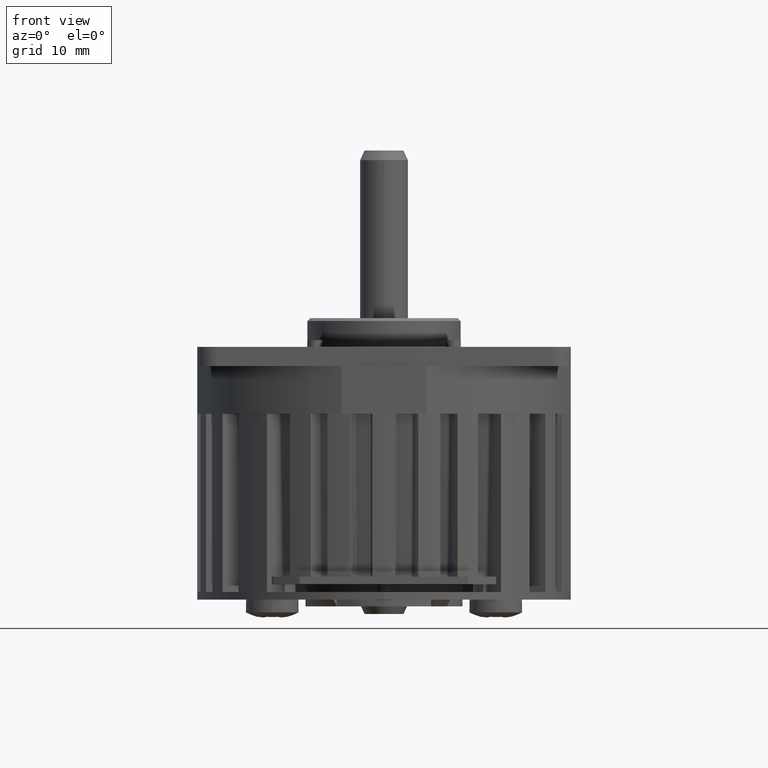
[diagram: clean part render]
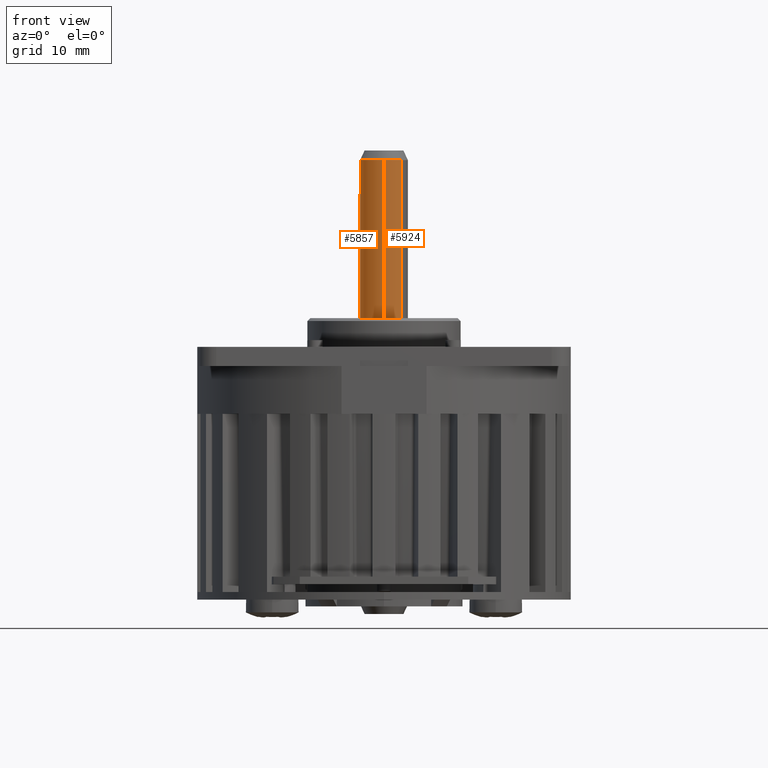
[diagram: same view with one multi-face feature highlighted, each face labeled with its STEP entity id]
A machine part, front view. The highlighted faces form ONE feature: a constant-radius fillet chain: 2 tangent blend faces with common blend radius 2.5 mm. The faces share edges in the B-rep.
Their STEP definitions:
[1] entity #5857 (Cylinder):
#5111=CARTESIAN_POINT('',(1.626980885086E-14,3.190264892539E-14,2.32E1));
#5112=DIRECTION('',(0.E0,0.E0,1.E0));
#5113=DIRECTION('',(1.E0,0.E0,0.E0));
#5114=AXIS2_PLACEMENT_3D('',#5111,#5112,#5113);
#5130=CARTESIAN_POINT('',(1.626980885086E-14,3.190264892539E-14,2.32E1));
#5131=DIRECTION('',(0.E0,0.E0,1.E0));
#5132=DIRECTION('',(-7.071067811865E-1,-7.071067811866E-1,0.E0));
#5133=AXIS2_PLACEMENT_3D('',#5130,#5131,#5132);
#5140=DIRECTION('',(0.E0,0.E0,1.E0));
#5141=VECTOR('',#5140,8.E0);
#5142=CARTESIAN_POINT('',(1.820199164927E0,1.713731309161E0,-8.E-1));
#5143=LINE('',#5142,#5141);
#5144=DIRECTION('',(0.E0,0.E0,-1.E0));
#5145=VECTOR('',#5144,8.E0);
#5146=CARTESIAN_POINT('',(-1.713731309161E0,-1.820199164927E0,7.2E0));
#5147=LINE('',#5146,#5145);
#5148=DIRECTION('',(0.E0,0.E0,-1.E0));
#5149=VECTOR('',#5148,8.E0);
#5150=CARTESIAN_POINT('',(1.820199164927E0,-1.713731309161E0,7.2E0));
#5151=LINE('',#5150,#5149);
#5152=DIRECTION('',(0.E0,0.E0,1.E0));
#5153=VECTOR('',#5152,8.E0);
#5154=CARTESIAN_POINT('',(1.713731309161E0,-1.820199164927E0,-8.E-1));
#5155=LINE('',#5154,#5153);
#5160=DIRECTION('',(0.E0,0.E0,-1.E0));
#5161=VECTOR('',#5160,2.24E1);
#5162=CARTESIAN_POINT('',(1.767766952966E0,1.767766952966E0,-8.E-1));
#5163=LINE('',#5162,#5161);
#5168=DIRECTION('',(0.E0,0.E0,-1.E0));
#5169=VECTOR('',#5168,1.6E1);
#5170=CARTESIAN_POINT('',(1.767766952966E0,1.767766952966E0,2.32E1));
#5171=LINE('',#5170,#5169);
#5180=DIRECTION('',(0.E0,0.E0,1.E0));
#5181=VECTOR('',#5180,1.6E1);
#5182=CARTESIAN_POINT('',(-1.767766952966E0,-1.767766952966E0,7.2E0));
#5183=LINE('',#5182,#5181);
#5188=DIRECTION('',(0.E0,0.E0,1.E0));
#5189=VECTOR('',#5188,2.24E1);
#5190=CARTESIAN_POINT('',(-1.767766952966E0,-1.767766952966E0,-2.32E1));
#5191=LINE('',#5190,#5189);
#5192=CARTESIAN_POINT('',(0.E0,0.E0,7.2E0));
#5193=DIRECTION('',(0.E0,0.E0,-1.E0));
#5194=DIRECTION('',(-7.E-1,-7.141428428543E-1,0.E0));
#5195=AXIS2_PLACEMENT_3D('',#5192,#5193,#5194);
#5218=CARTESIAN_POINT('',(0.E0,0.E0,-8.E-1));
#5219=DIRECTION('',(0.E0,0.E0,1.E0));
#5220=DIRECTION('',(-7.071067811865E-1,-7.071067811866E-1,0.E0));
#5221=AXIS2_PLACEMENT_3D('',#5218,#5219,#5220);
#5266=CARTESIAN_POINT('',(0.E0,0.E0,7.2E0));
#5267=DIRECTION('',(0.E0,0.E0,-1.E0));
#5268=DIRECTION('',(-6.854925236646E-1,-7.280796659707E-1,0.E0));
#5269=AXIS2_PLACEMENT_3D('',#5266,#5267,#5268);
#5283=CARTESIAN_POINT('',(0.E0,0.E0,-8.E-1));
#5284=DIRECTION('',(0.E0,0.E0,1.E0));
#5285=DIRECTION('',(-7.E-1,-7.141428428543E-1,0.E0));
#5286=AXIS2_PLACEMENT_3D('',#5283,#5284,#5285);
#5301=CARTESIAN_POINT('',(-1.624948006013E-14,-3.195008277043E-14,-2.32E1));
#5302=DIRECTION('',(0.E0,0.E0,-1.E0));
#5303=DIRECTION('',(1.E0,0.E0,0.E0));
#5304=AXIS2_PLACEMENT_3D('',#5301,#5302,#5303);
#5310=CARTESIAN_POINT('',(-1.624948006013E-14,-3.195008277043E-14,-2.32E1));
#5311=DIRECTION('',(0.E0,0.E0,-1.E0));
#5312=DIRECTION('',(7.071067811865E-1,7.071067811866E-1,0.E0));
#5313=AXIS2_PLACEMENT_3D('',#5310,#5311,#5312);
#5335=CARTESIAN_POINT('',(0.E0,0.E0,-8.E-1));
#5336=DIRECTION('',(0.E0,0.E0,1.E0));
#5337=DIRECTION('',(7.141428428543E-1,7.E-1,0.E0));
#5338=AXIS2_PLACEMENT_3D('',#5335,#5336,#5337);
#5377=CARTESIAN_POINT('',(0.E0,0.E0,7.2E0));
#5378=DIRECTION('',(0.E0,0.E0,-1.E0));
#5379=DIRECTION('',(7.071067811865E-1,7.071067811866E-1,0.E0));
#5380=AXIS2_PLACEMENT_3D('',#5377,#5378,#5379);
#5408=CARTESIAN_POINT('',(0.E0,0.E0,-8.E-1));
#5409=DIRECTION('',(0.E0,0.E0,1.E0));
#5410=DIRECTION('',(7.280796659707E-1,6.854925236646E-1,0.E0));
#5411=AXIS2_PLACEMENT_3D('',#5408,#5409,#5410);
#5417=CARTESIAN_POINT('',(0.E0,0.E0,7.2E0));
#5418=DIRECTION('',(0.E0,0.E0,-1.E0));
#5419=DIRECTION('',(7.141428428543E-1,7.E-1,0.E0));
#5420=AXIS2_PLACEMENT_3D('',#5417,#5418,#5419);
#5520=CARTESIAN_POINT('',(0.E0,0.E0,-8.E-1));
#5521=DIRECTION('',(0.E0,0.E0,1.E0));
#5522=DIRECTION('',(7.141428428543E-1,-7.E-1,0.E0));
#5523=AXIS2_PLACEMENT_3D('',#5520,#5521,#5522);
#5537=CARTESIAN_POINT('',(0.E0,0.E0,-8.E-1));
#5538=DIRECTION('',(0.E0,0.E0,1.E0));
#5539=DIRECTION('',(7.E-1,-7.141428428543E-1,0.E0));
#5540=AXIS2_PLACEMENT_3D('',#5537,#5538,#5539);
#5558=CARTESIAN_POINT('',(0.E0,0.E0,-8.E-1));
#5559=DIRECTION('',(0.E0,0.E0,1.E0));
#5560=DIRECTION('',(6.854925236646E-1,-7.280796659707E-1,0.E0));
#5561=AXIS2_PLACEMENT_3D('',#5558,#5559,#5560);
#5567=CARTESIAN_POINT('',(0.E0,0.E0,7.2E0));
#5568=DIRECTION('',(0.E0,0.E0,-1.E0));
#5569=DIRECTION('',(7.E-1,-7.141428428543E-1,0.E0));
#5570=AXIS2_PLACEMENT_3D('',#5567,#5568,#5569);
#5580=CARTESIAN_POINT('',(0.E0,0.E0,7.2E0));
#5581=DIRECTION('',(0.E0,0.E0,-1.E0));
#5582=DIRECTION('',(7.141428428543E-1,-7.E-1,0.E0));
#5583=AXIS2_PLACEMENT_3D('',#5580,#5581,#5582);
#5593=CARTESIAN_POINT('',(0.E0,0.E0,7.2E0));
#5594=DIRECTION('',(0.E0,0.E0,-1.E0));
#5595=DIRECTION('',(7.280796659707E-1,-6.854925236646E-1,0.E0));
#5596=AXIS2_PLACEMENT_3D('',#5593,#5594,#5595);
#5619=CARTESIAN_POINT('',(1.767766952966E0,1.767766952966E0,-2.32E1));
#5621=VERTEX_POINT('',#5619);
#5622=CARTESIAN_POINT('',(2.5E0,4.327209894323E-14,2.32E1));
#5623=CARTESIAN_POINT('',(1.767766952966E0,1.767766952966E0,2.32E1));
#5624=VERTEX_POINT('',#5622);
#5625=VERTEX_POINT('',#5623);
#5628=CARTESIAN_POINT('',(2.5E0,-2.095186674799E-14,-2.32E1));
#5630=VERTEX_POINT('',#5628);
#5632=CARTESIAN_POINT('',(-1.767766952966E0,-1.767766952966E0,-2.32E1));
#5633=VERTEX_POINT('',#5632);
#5637=CARTESIAN_POINT('',(-1.767766952966E0,-1.767766952966E0,-8.E-1));
#5639=VERTEX_POINT('',#5637);
#5642=CARTESIAN_POINT('',(-1.767766952966E0,-1.767766952966E0,2.32E1));
#5643=VERTEX_POINT('',#5642);
#5648=CARTESIAN_POINT('',(-1.767766952966E0,-1.767766952966E0,7.2E0));
#5649=VERTEX_POINT('',#5648);
#5650=CARTESIAN_POINT('',(1.713731309161E0,-1.820199164927E0,-8.E-1));
#5651=CARTESIAN_POINT('',(1.75E0,-1.785357107136E0,-8.E-1));
#5652=VERTEX_POINT('',#5650);
#5653=VERTEX_POINT('',#5651);
#5654=CARTESIAN_POINT('',(1.75E0,-1.785357107136E0,7.2E0));
#5655=CARTESIAN_POINT('',(1.713731309161E0,-1.820199164927E0,7.2E0));
#5656=VERTEX_POINT('',#5654);
#5657=VERTEX_POINT('',#5655);
#5658=CARTESIAN_POINT('',(1.785357107136E0,-1.75E0,7.2E0));
#5659=VERTEX_POINT('',#5658);
#5660=CARTESIAN_POINT('',(1.785357107136E0,-1.75E0,-8.E-1));
#5661=VERTEX_POINT('',#5660);
#5662=CARTESIAN_POINT('',(1.820199164927E0,-1.713731309161E0,-8.E-1));
#5663=VERTEX_POINT('',#5662);
#5664=CARTESIAN_POINT('',(1.820199164927E0,-1.713731309161E0,7.2E0));
#5665=VERTEX_POINT('',#5664);
#5666=CARTESIAN_POINT('',(-1.75E0,-1.785357107136E0,7.2E0));
#5667=VERTEX_POINT('',#5666);
#5668=CARTESIAN_POINT('',(-1.75E0,-1.785357107136E0,-8.E-1));
#5669=CARTESIAN_POINT('',(-1.713731309161E0,-1.820199164927E0,-8.E-1));
#5670=VERTEX_POINT('',#5668);
#5671=VERTEX_POINT('',#5669);
#5672=CARTESIAN_POINT('',(-1.713731309161E0,-1.820199164927E0,7.2E0));
#5673=VERTEX_POINT('',#5672);
#5674=CARTESIAN_POINT('',(1.767766952966E0,1.767766952966E0,-8.E-1));
#5675=VERTEX_POINT('',#5674);
#5676=CARTESIAN_POINT('',(1.820199164927E0,1.713731309161E0,-8.E-1));
#5677=CARTESIAN_POINT('',(1.820199164927E0,1.713731309161E0,7.2E0));
#5678=VERTEX_POINT('',#5676);
#5679=VERTEX_POINT('',#5677);
#5680=CARTESIAN_POINT('',(1.785357107136E0,1.75E0,-8.E-1));
#5681=VERTEX_POINT('',#5680);
#5682=CARTESIAN_POINT('',(1.785357107136E0,1.75E0,7.2E0));
#5683=VERTEX_POINT('',#5682);
#5684=CARTESIAN_POINT('',(1.767766952966E0,1.767766952966E0,7.2E0));
#5685=VERTEX_POINT('',#5684);
#5798=CARTESIAN_POINT('',(-3.489775742688E-14,-6.853512982824E-14,
-4.979483019480E1));
#5799=DIRECTION('',(0.E0,0.E0,-1.E0));
#5800=DIRECTION('',(-1.E0,0.E0,0.E0));
#5801=AXIS2_PLACEMENT_3D('',#5798,#5799,#5800);
#5802=CYLINDRICAL_SURFACE('',#5801,2.5E0);
#5803=ORIENTED_EDGE('',*,*,#5765,.T.);
#5805=ORIENTED_EDGE('',*,*,#5804,.T.);
#5807=ORIENTED_EDGE('',*,*,#5806,.T.);
#5809=ORIENTED_EDGE('',*,*,#5808,.T.);
#5811=ORIENTED_EDGE('',*,*,#5810,.F.);
#5813=ORIENTED_EDGE('',*,*,#5812,.T.);
#5815=ORIENTED_EDGE('',*,*,#5814,.T.);
#5817=ORIENTED_EDGE('',*,*,#5816,.T.);
#5819=ORIENTED_EDGE('',*,*,#5818,.T.);
#5821=ORIENTED_EDGE('',*,*,#5820,.T.);
#5823=ORIENTED_EDGE('',*,*,#5822,.T.);
#5825=ORIENTED_EDGE('',*,*,#5824,.T.);
#5827=ORIENTED_EDGE('',*,*,#5826,.T.);
#5829=ORIENTED_EDGE('',*,*,#5828,.F.);
#5831=ORIENTED_EDGE('',*,*,#5830,.T.);
#5833=ORIENTED_EDGE('',*,*,#5832,.T.);
#5835=ORIENTED_EDGE('',*,*,#5834,.T.);
#5836=ORIENTED_EDGE('',*,*,#5789,.T.);
#5837=EDGE_LOOP('',(#5803,#5805,#5807,#5809,#5811,#5813,#5815,#5817,#5819,#5821,
#5823,#5825,#5827,#5829,#5831,#5833,#5835,#5836));
#5838=FACE_OUTER_BOUND('',#5837,.F.);
#5840=ORIENTED_EDGE('',*,*,#5839,.T.);
#5842=ORIENTED_EDGE('',*,*,#5841,.F.);
#5844=ORIENTED_EDGE('',*,*,#5843,.T.);
#5846=ORIENTED_EDGE('',*,*,#5845,.T.);
#5848=ORIENTED_EDGE('',*,*,#5847,.T.);
#5850=ORIENTED_EDGE('',*,*,#5849,.F.);
#5852=ORIENTED_EDGE('',*,*,#5851,.T.);
#5854=ORIENTED_EDGE('',*,*,#5853,.T.);
#5855=EDGE_LOOP('',(#5840,#5842,#5844,#5846,#5848,#5850,#5852,#5854));
#5856=FACE_BOUND('',#5855,.F.);
#5857=ADVANCED_FACE('',(#5838,#5856),#5802,.T.);
#5115=CIRCLE('',#5114,2.5E0);
#5134=CIRCLE('',#5133,2.5E0);
#5196=CIRCLE('',#5195,2.5E0);
#5222=CIRCLE('',#5221,2.5E0);
#5270=CIRCLE('',#5269,2.5E0);
#5287=CIRCLE('',#5286,2.5E0);
#5305=CIRCLE('',#5304,2.5E0);
#5314=CIRCLE('',#5313,2.5E0);
#5339=CIRCLE('',#5338,2.5E0);
#5381=CIRCLE('',#5380,2.5E0);
#5412=CIRCLE('',#5411,2.5E0);
#5421=CIRCLE('',#5420,2.5E0);
#5524=CIRCLE('',#5523,2.5E0);
#5541=CIRCLE('',#5540,2.5E0);
#5562=CIRCLE('',#5561,2.5E0);
#5571=CIRCLE('',#5570,2.5E0);
#5584=CIRCLE('',#5583,2.5E0);
#5597=CIRCLE('',#5596,2.5E0);
#5765=EDGE_CURVE('',#5624,#5625,#5115,.T.);
#5789=EDGE_CURVE('',#5643,#5624,#5134,.T.);
#5804=EDGE_CURVE('',#5625,#5685,#5171,.T.);
#5806=EDGE_CURVE('',#5685,#5683,#5381,.T.);
#5808=EDGE_CURVE('',#5683,#5679,#5421,.T.);
#5810=EDGE_CURVE('',#5678,#5679,#5143,.T.);
#5812=EDGE_CURVE('',#5678,#5681,#5412,.T.);
#5814=EDGE_CURVE('',#5681,#5675,#5339,.T.);
#5816=EDGE_CURVE('',#5675,#5621,#5163,.T.);
#5818=EDGE_CURVE('',#5621,#5630,#5314,.T.);
#5820=EDGE_CURVE('',#5630,#5633,#5305,.T.);
#5822=EDGE_CURVE('',#5633,#5639,#5191,.T.);
#5824=EDGE_CURVE('',#5639,#5670,#5222,.T.);
#5826=EDGE_CURVE('',#5670,#5671,#5287,.T.);
#5828=EDGE_CURVE('',#5673,#5671,#5147,.T.);
#5830=EDGE_CURVE('',#5673,#5667,#5270,.T.);
#5832=EDGE_CURVE('',#5667,#5649,#5196,.T.);
#5834=EDGE_CURVE('',#5649,#5643,#5183,.T.);
#5839=EDGE_CURVE('',#5661,#5663,#5524,.T.);
#5841=EDGE_CURVE('',#5665,#5663,#5151,.T.);
#5843=EDGE_CURVE('',#5665,#5659,#5597,.T.);
#5845=EDGE_CURVE('',#5659,#5656,#5584,.T.);
#5847=EDGE_CURVE('',#5656,#5657,#5571,.T.);
#5849=EDGE_CURVE('',#5652,#5657,#5155,.T.);
#5851=EDGE_CURVE('',#5652,#5653,#5562,.T.);
#5853=EDGE_CURVE('',#5653,#5661,#5541,.T.);
[2] entity #5924 (Cylinder):
#5135=CARTESIAN_POINT('',(1.626980885086E-14,3.190264892539E-14,2.32E1));
#5136=DIRECTION('',(0.E0,0.E0,1.E0));
#5137=DIRECTION('',(-1.E0,0.E0,0.E0));
#5138=AXIS2_PLACEMENT_3D('',#5135,#5136,#5137);
#5156=DIRECTION('',(0.E0,0.E0,1.E0));
#5157=VECTOR('',#5156,4.64E1);
#5158=CARTESIAN_POINT('',(-2.5E0,-4.305525350250E-14,-2.32E1));
#5159=LINE('',#5158,#5157);
#5180=DIRECTION('',(0.E0,0.E0,1.E0));
#5181=VECTOR('',#5180,1.6E1);
#5182=CARTESIAN_POINT('',(-1.767766952966E0,-1.767766952966E0,7.2E0));
#5183=LINE('',#5182,#5181);
#5184=DIRECTION('',(0.E0,0.E0,1.E0));
#5185=VECTOR('',#5184,8.E0);
#5186=CARTESIAN_POINT('',(-1.820199164927E0,-1.713731309161E0,-8.E-1));
#5187=LINE('',#5186,#5185);
#5188=DIRECTION('',(0.E0,0.E0,1.E0));
#5189=VECTOR('',#5188,2.24E1);
#5190=CARTESIAN_POINT('',(-1.767766952966E0,-1.767766952966E0,-2.32E1));
#5191=LINE('',#5190,#5189);
#5205=CARTESIAN_POINT('',(0.E0,0.E0,7.2E0));
#5206=DIRECTION('',(0.E0,0.E0,-1.E0));
#5207=DIRECTION('',(-7.071067811865E-1,-7.071067811866E-1,0.E0));
#5208=AXIS2_PLACEMENT_3D('',#5205,#5206,#5207);
#5223=CARTESIAN_POINT('',(0.E0,0.E0,-8.E-1));
#5224=DIRECTION('',(0.E0,0.E0,1.E0));
#5225=DIRECTION('',(-7.141428428543E-1,-7.E-1,0.E0));
#5226=AXIS2_PLACEMENT_3D('',#5223,#5224,#5225);
#5244=CARTESIAN_POINT('',(0.E0,0.E0,-8.E-1));
#5245=DIRECTION('',(0.E0,0.E0,1.E0));
#5246=DIRECTION('',(-7.280796659707E-1,-6.854925236646E-1,0.E0));
#5247=AXIS2_PLACEMENT_3D('',#5244,#5245,#5246);
#5253=CARTESIAN_POINT('',(0.E0,0.E0,7.2E0));
#5254=DIRECTION('',(0.E0,0.E0,-1.E0));
#5255=DIRECTION('',(-7.141428428543E-1,-7.E-1,0.E0));
#5256=AXIS2_PLACEMENT_3D('',#5253,#5254,#5255);
#5296=CARTESIAN_POINT('',(-1.624948006013E-14,-3.195008277043E-14,-2.32E1));
#5297=DIRECTION('',(0.E0,0.E0,-1.E0));
#5298=DIRECTION('',(-7.071067811865E-1,-7.071067811866E-1,0.E0));
#5299=AXIS2_PLACEMENT_3D('',#5296,#5297,#5298);
#5618=CARTESIAN_POINT('',(-2.5E0,-4.305819398831E-14,-2.32E1));
#5620=VERTEX_POINT('',#5618);
#5626=CARTESIAN_POINT('',(-2.5E0,2.124450788898E-14,2.32E1));
#5627=VERTEX_POINT('',#5626);
#5632=CARTESIAN_POINT('',(-1.767766952966E0,-1.767766952966E0,-2.32E1));
#5633=VERTEX_POINT('',#5632);
#5636=CARTESIAN_POINT('',(-1.785357107136E0,-1.75E0,-8.E-1));
#5637=CARTESIAN_POINT('',(-1.767766952966E0,-1.767766952966E0,-8.E-1));
#5638=VERTEX_POINT('',#5636);
#5639=VERTEX_POINT('',#5637);
#5640=CARTESIAN_POINT('',(-1.820199164927E0,-1.713731309161E0,-8.E-1));
#5641=VERTEX_POINT('',#5640);
#5642=CARTESIAN_POINT('',(-1.767766952966E0,-1.767766952966E0,2.32E1));
#5643=VERTEX_POINT('',#5642);
#5644=CARTESIAN_POINT('',(-1.820199164927E0,-1.713731309161E0,7.2E0));
#5645=VERTEX_POINT('',#5644);
#5646=CARTESIAN_POINT('',(-1.785357107136E0,-1.75E0,7.2E0));
#5647=VERTEX_POINT('',#5646);
#5648=CARTESIAN_POINT('',(-1.767766952966E0,-1.767766952966E0,7.2E0));
#5649=VERTEX_POINT('',#5648);
#5901=CARTESIAN_POINT('',(-3.489775742688E-14,-6.853512982824E-14,
-4.979483019480E1));
#5902=DIRECTION('',(0.E0,0.E0,-1.E0));
#5903=DIRECTION('',(-1.E0,0.E0,0.E0));
#5904=AXIS2_PLACEMENT_3D('',#5901,#5902,#5903);
#5905=CYLINDRICAL_SURFACE('',#5904,2.5E0);
#5906=ORIENTED_EDGE('',*,*,#5791,.T.);
#5907=ORIENTED_EDGE('',*,*,#5834,.F.);
#5909=ORIENTED_EDGE('',*,*,#5908,.T.);
#5911=ORIENTED_EDGE('',*,*,#5910,.T.);
#5913=ORIENTED_EDGE('',*,*,#5912,.F.);
#5915=ORIENTED_EDGE('',*,*,#5914,.T.);
#5917=ORIENTED_EDGE('',*,*,#5916,.T.);
#5918=ORIENTED_EDGE('',*,*,#5822,.F.);
#5920=ORIENTED_EDGE('',*,*,#5919,.T.);
#5921=ORIENTED_EDGE('',*,*,#5863,.T.);
#5922=EDGE_LOOP('',(#5906,#5907,#5909,#5911,#5913,#5915,#5917,#5918,#5920,
#5921));
#5923=FACE_OUTER_BOUND('',#5922,.F.);
#5924=ADVANCED_FACE('',(#5923),#5905,.T.);
#5139=CIRCLE('',#5138,2.5E0);
#5209=CIRCLE('',#5208,2.5E0);
#5227=CIRCLE('',#5226,2.5E0);
#5248=CIRCLE('',#5247,2.5E0);
#5257=CIRCLE('',#5256,2.5E0);
#5300=CIRCLE('',#5299,2.5E0);
#5791=EDGE_CURVE('',#5627,#5643,#5139,.T.);
#5822=EDGE_CURVE('',#5633,#5639,#5191,.T.);
#5834=EDGE_CURVE('',#5649,#5643,#5183,.T.);
#5863=EDGE_CURVE('',#5620,#5627,#5159,.T.);
#5908=EDGE_CURVE('',#5649,#5647,#5209,.T.);
#5910=EDGE_CURVE('',#5647,#5645,#5257,.T.);
#5912=EDGE_CURVE('',#5641,#5645,#5187,.T.);
#5914=EDGE_CURVE('',#5641,#5638,#5248,.T.);
#5916=EDGE_CURVE('',#5638,#5639,#5227,.T.);
#5919=EDGE_CURVE('',#5633,#5620,#5300,.T.);